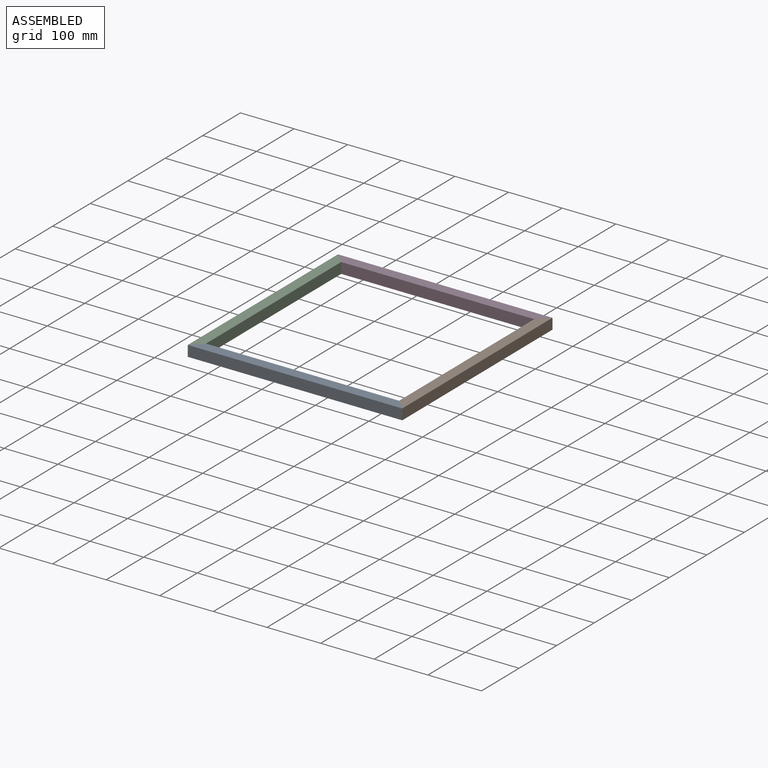
[diagram: assembled view]
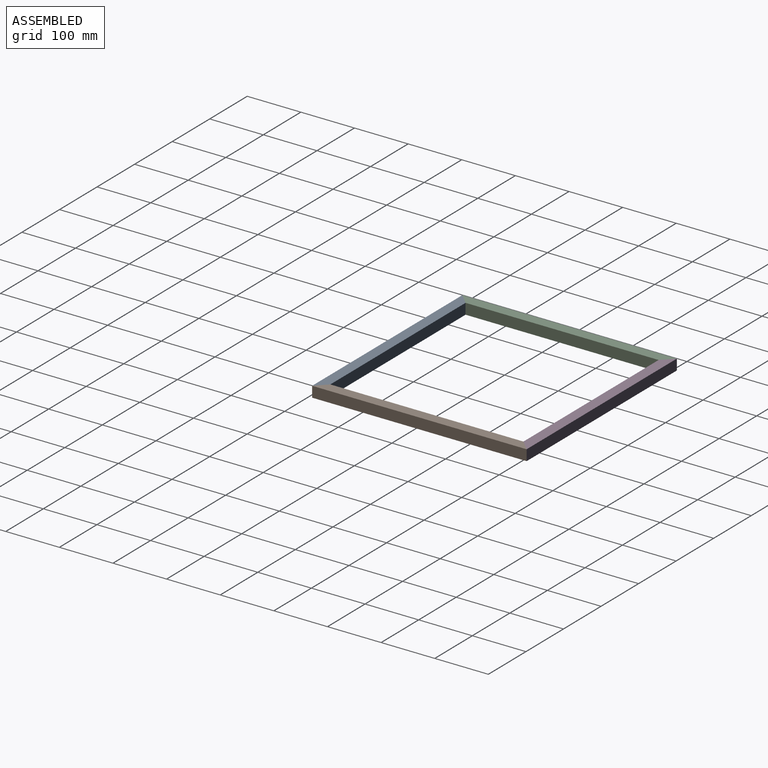
[diagram: assembled view, second angle]
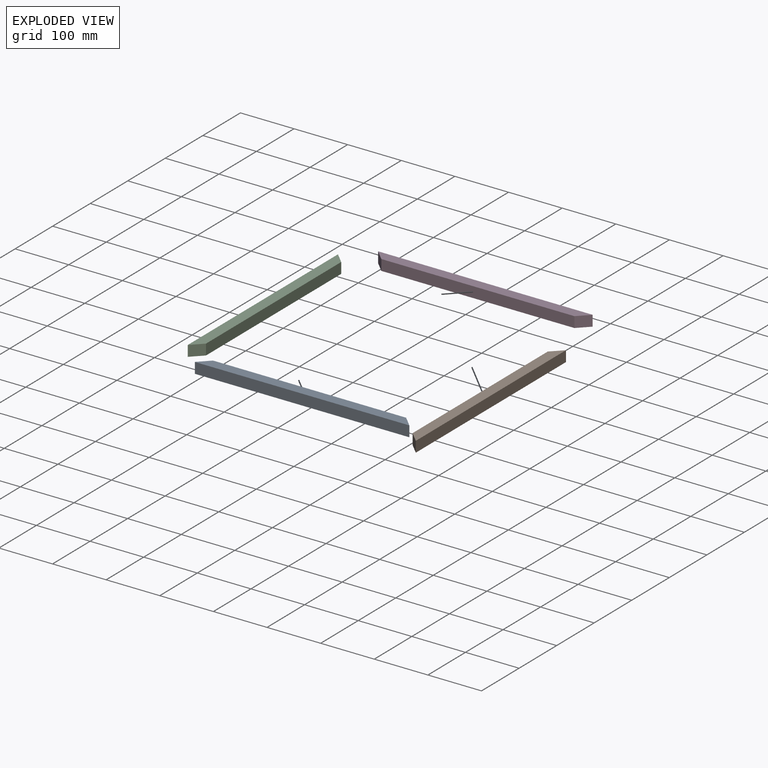
[diagram: exploded view]
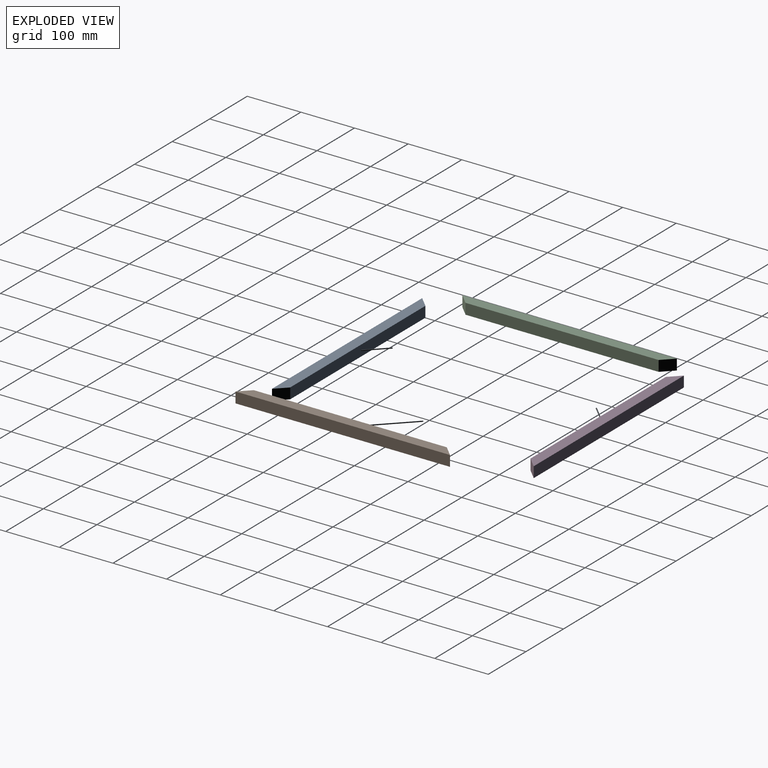
[diagram: exploded view, second angle]
ASSEMBLY  parts=4 mates=3
PART A: 6 faces, bbox 400x20x20 mm
  f0: plane 400x20mm, normal (0,1,0), area 8000mm2, adj f2,f3,f4,f5
  f1: plane 360x20mm, normal (0,-1,0), area 7200mm2, adj f2,f3,f4,f5
  f2: plane 400x20mm, normal (0,0,1), area 7600mm2, adj f0,f1,f4,f5
  f3: plane 400x20mm, normal (0,0,-1), area 7600mm2, adj f0,f1,f4,f5
  f4: plane 20x20mm, normal (-0.71,-0.71,0), area 565.7mm2, adj f0,f1,f2,f3
  f5: plane 20x20mm, normal (0.71,-0.71,0), area 565.7mm2, adj f0,f1,f2,f3
PART B: same geometry as A
PART C: same geometry as A
PART D: same geometry as A
PLACE A rot(axis=(0,0,-1),180deg) t=(170.04,-346.56,-43.82)mm
PLACE B rot(axis=(0,0,-1),90deg) t=(213.64,-63.84,-43.82)mm
PLACE C rot(axis=(0,0,1),90deg) t=(-112.68,-302.96,-43.82)mm
PLACE D t=(-69.08,-20.24,-43.82)mm
MATE fastened C.f5 <-> D.f4  axis (0.71,0.71,0) through (-139.52,6.6,-33.82)mm
MATE fastened A.f5 <-> C.f4  axis (-0.71,0.71,0) through (-139.52,-373.4,-33.82)mm
MATE fastened B.f4 <-> D.f5  axis (-0.71,0.71,0) through (240.48,6.6,-33.82)mm
